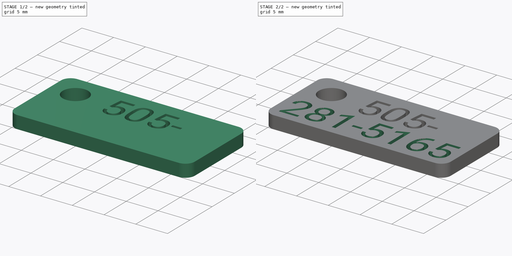
[diagram: build sequence overview — one tinted view per stage of 2, left to right]
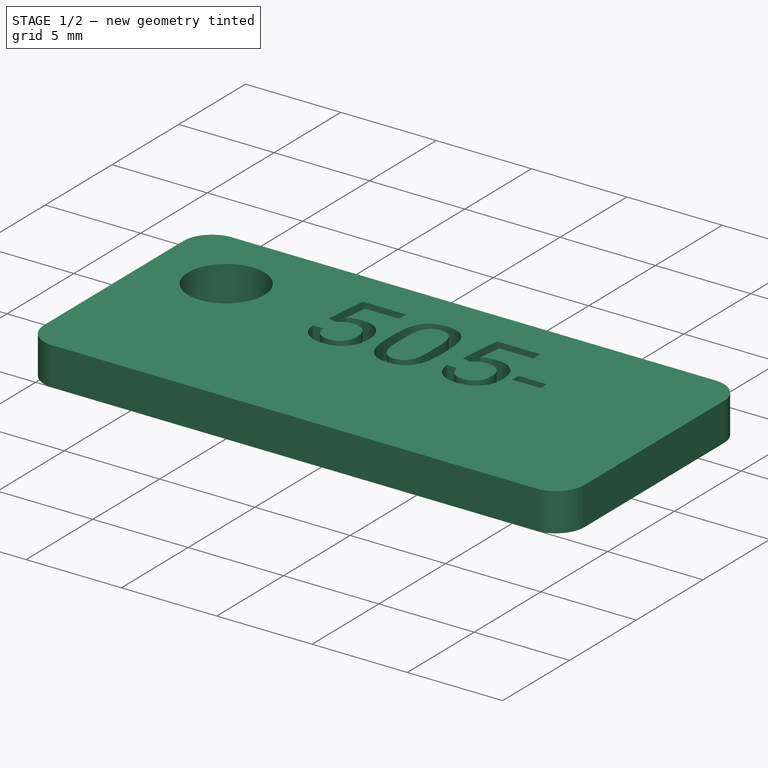
[diagram: stage 1 of 2 — iso view after this stage's code; geometry added in this stage tinted green]
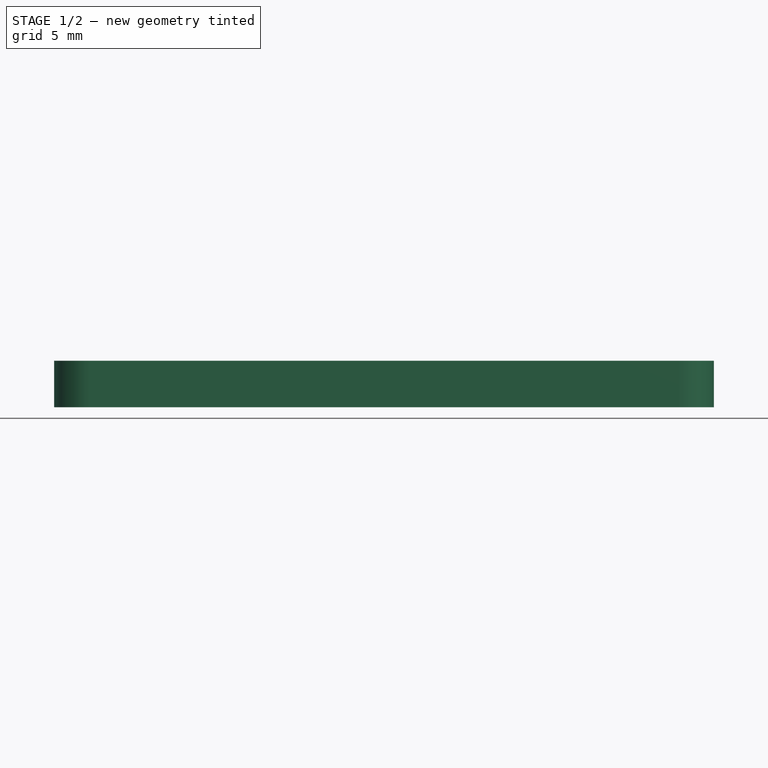
[diagram: stage 1 of 2 — front view after this stage's code; geometry added in this stage tinted green]
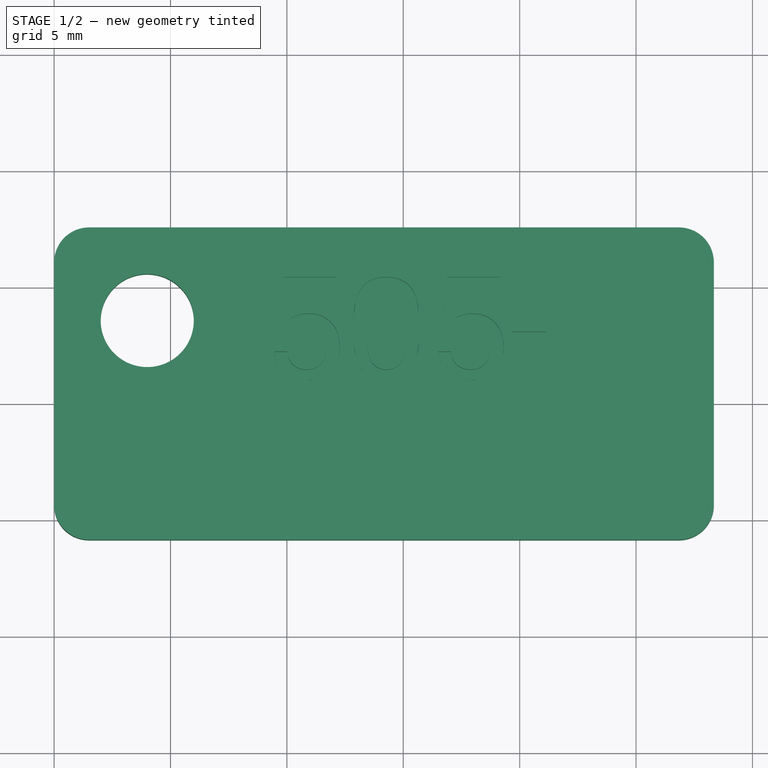
[diagram: stage 1 of 2 — top view after this stage's code; geometry added in this stage tinted green]
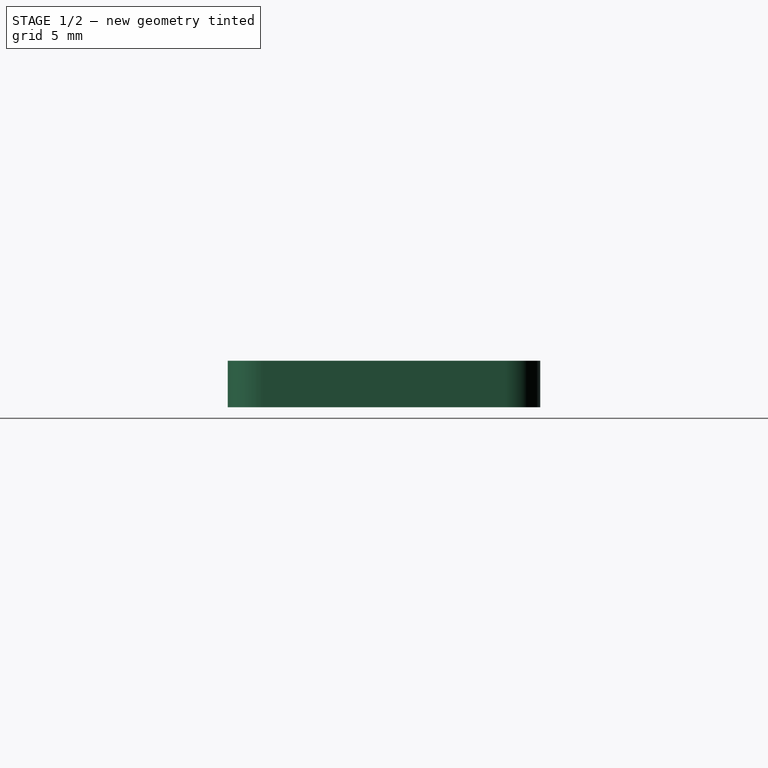
[diagram: stage 1 of 2 — right view after this stage's code; geometry added in this stage tinted green]
FCSTD DOCUMENT  (FreeCAD 0.19R24291 (Git))
Label: cat collar phone tag, 2 lines, smaller, Will
License: All rights reserved
LicenseURL: http://en.wikipedia.org/wiki/All_rights_reserved
objects: Part::Part2DObjectPython×2, PartDesign::Pocket×2, Sketcher::SketchObject×1, PartDesign::Pad×1, PartDesign::Body×1
note: 10 computed .brp shape members not serialized (recipe doc carries the construction recipe); baked Part::Feature solids carry a one-line shape summary decoded from their .brp

FEATURE [Sketcher::SketchObject] Sketch
  FullyConstrained = false
  MapMode = 5
  Support = -> [XY_Plane]
  sketch-geometry (9):
    g0: LineSegment StartX=-13.5 StartY=7.56504 StartZ=0 EndX=11.8429 EndY=7.56504 EndZ=0
    g1: LineSegment StartX=13.3429 StartY=6.06504 StartZ=0 EndX=13.3429 EndY=-4.35562 EndZ=0
    g2: LineSegment StartX=11.8429 StartY=-5.85562 StartZ=0 EndX=-13.5 EndY=-5.85562 EndZ=0
    g3: LineSegment StartX=-15 StartY=-4.35562 StartZ=0 EndX=-15 EndY=6.06504 EndZ=0
    g4: Circle CenterX=-11 CenterY=3.56504 CenterZ=0 NormalX=0 NormalY=0 NormalZ=1 AngleXU=0 Radius=2
    g5: ArcOfCircle CenterX=11.8429 CenterY=6.06504 CenterZ=0 NormalX=0 NormalY=0 NormalZ=1 AngleXU=0 Radius=1.5 StartAngle=0 EndAngle=1.5708
    g6: ArcOfCircle CenterX=11.8429 CenterY=-4.35562 CenterZ=0 NormalX=0 NormalY=0 NormalZ=1 AngleXU=0 Radius=1.5 StartAngle=4.71239 EndAngle=6.28319
    g7: ArcOfCircle CenterX=-13.5 CenterY=-4.35562 CenterZ=0 NormalX=0 NormalY=0 NormalZ=1 AngleXU=0 Radius=1.5 StartAngle=3.14159 EndAngle=4.71239
    g8: ArcOfCircle CenterX=-13.5 CenterY=6.06504 CenterZ=0 NormalX=0 NormalY=0 NormalZ=1 AngleXU=0 Radius=1.5 StartAngle=1.5708 EndAngle=3.14159
  constraints (19):
    c: Horizontal(g0)
    c: Horizontal(g2)
    c: Vertical(g1)
    c: Vertical(g3)
    c: Diameter(g4) = 4
    c: Tangent(g0,g5) = 1.5708
    c: Tangent(g1,g5) = 1.5708
    c: Tangent(g1,g6) = 1.5708
    c: Tangent(g2,g6) = 1.5708
    c: Tangent(g2,g7) = 1.5708
    c: Tangent(g3,g7) = 1.5708
    c: Tangent(g3,g8) = 1.5708
    c: Tangent(g0,g8) = 1.5708
    c: Equal(g5,g6)
    c: Diameter(g8) = 3
    c: Equal(g5,g7)
    c: Equal(g6,g8)
    c: DistanceY(g4,g0) = 4
    c: DistanceX(g3,g4) = 4
FEATURE [PartDesign::Pad] Pad
  Direction = (0,0,1)
  Length = 2
  Length2 = 100
  Profile = -> Sketch
  Type = 0
FEATURE [Part::Part2DObjectPython] ShapeString  label="505"  # Draft 2D object (typed FeaturePython)
  AttachmentOffset = pos=(-6,1,-1) rot=(0,0,1;0rad)
  FontFile = <userpath>/.fonts/Roboto/hinted/Roboto-Regular.ttf
  MakeFace = true
  MapMode = 5
  Placement = pos=(-6,1,1) rot=(0,0,1;0rad)
  Size = 5.5
  String = 505-
  Support = -> [Pad]
  Tracking = 0
FEATURE [Part::Part2DObjectPython] ShapeString001  label="286-2385"  # Draft 2D object (typed FeaturePython)
  AttachmentOffset = pos=(-14,-4.5,-1) rot=(0,0,1;0rad)
  FontFile = <userpath>/.fonts/Roboto/hinted/Roboto-Regular.ttf
  MakeFace = true
  MapMode = 5
  Placement = pos=(-14,-4.5,1) rot=(0,0,1;0rad)
  Size = 5.5
  String = 281-5165
  Support = -> [Pad]
  Tracking = 0
FEATURE [PartDesign::Pocket] Pocket
  BaseFeature = -> Pad
  Length = 1
  Length2 = 100
  Profile = -> ShapeString
  Reversed = true
  Type = 0
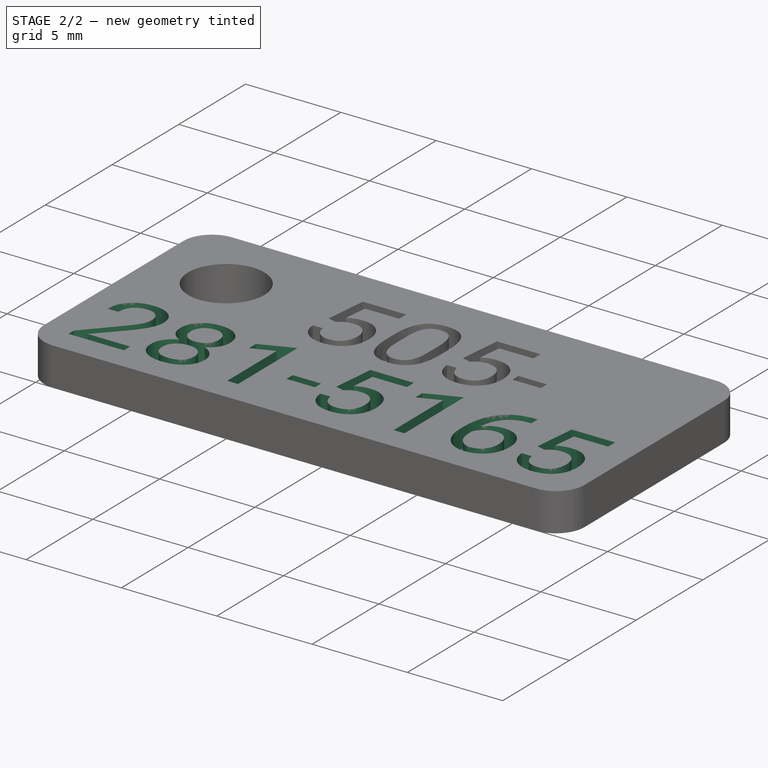
[diagram: stage 2 of 2 — iso view after this stage's code; geometry added in this stage tinted green]
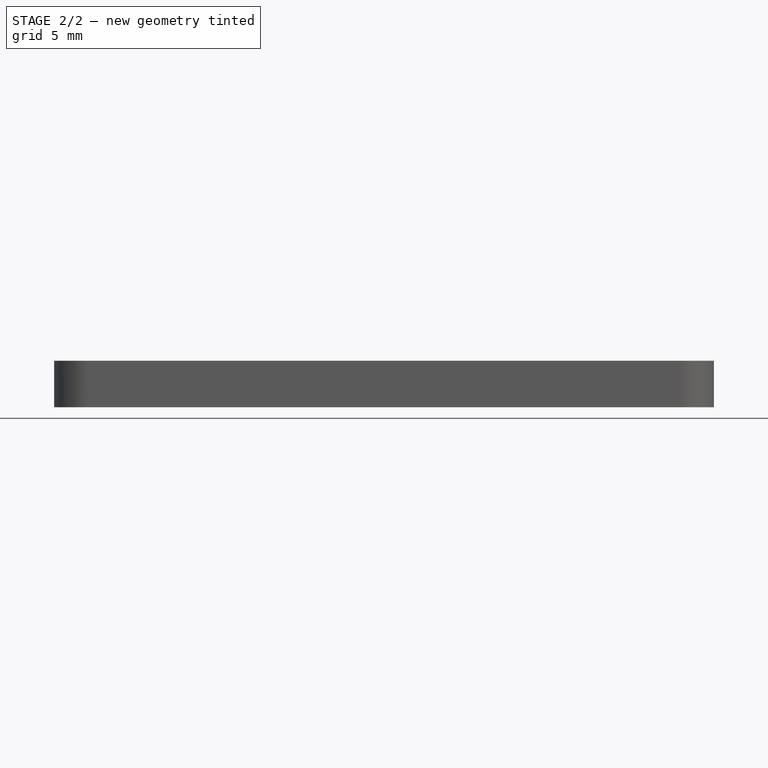
[diagram: stage 2 of 2 — front view after this stage's code; geometry added in this stage tinted green]
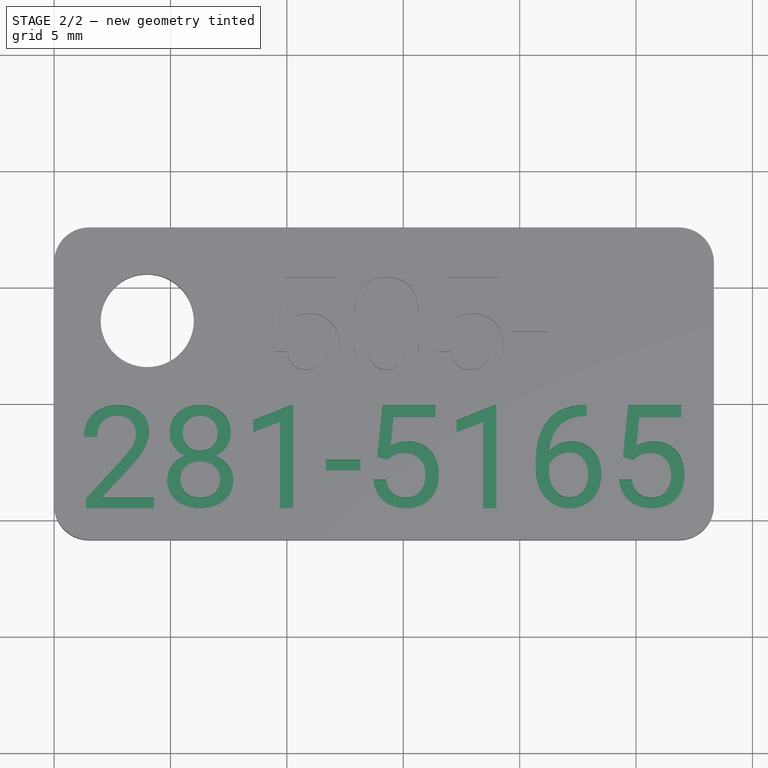
[diagram: stage 2 of 2 — top view after this stage's code; geometry added in this stage tinted green]
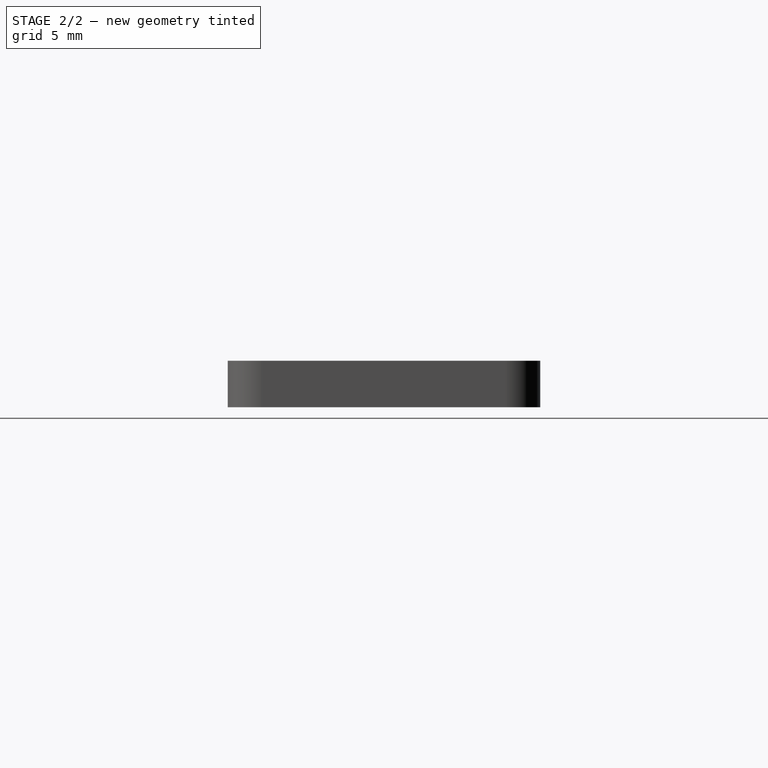
[diagram: stage 2 of 2 — right view after this stage's code; geometry added in this stage tinted green]
FEATURE [PartDesign::Pocket] Pocket001
  BaseFeature = -> Pocket
  Length = 1
  Length2 = 100
  Profile = -> ShapeString001
  Reversed = true
  Type = 0
FEATURE [PartDesign::Body] Body
  Group = -> [Sketch,Pad,ShapeString,ShapeString001,Pocket,Pocket001]
  Origin = -> Origin
  Tip = -> Pocket001
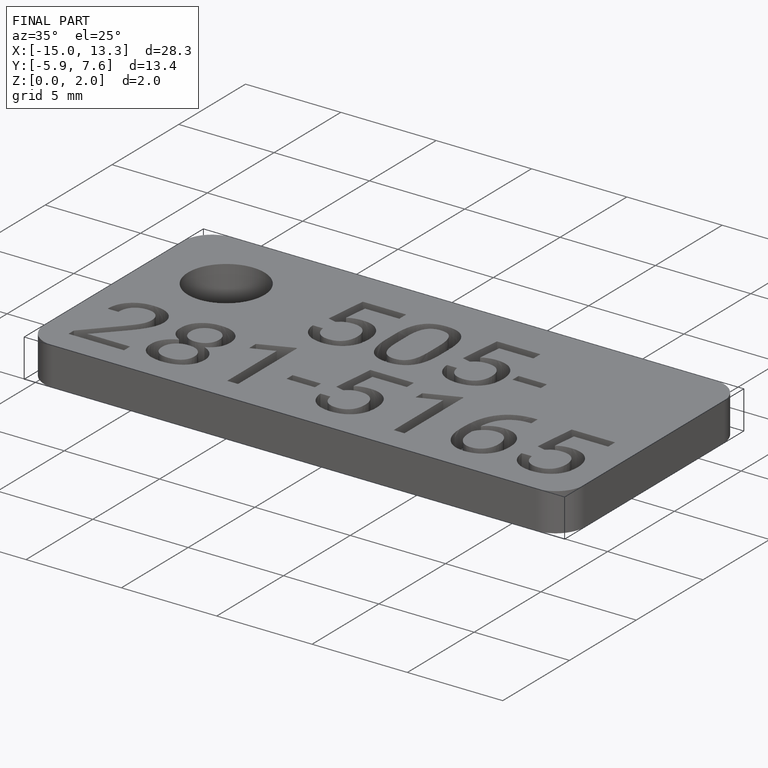
[diagram: finished part — iso view with bounding-box wireframe]
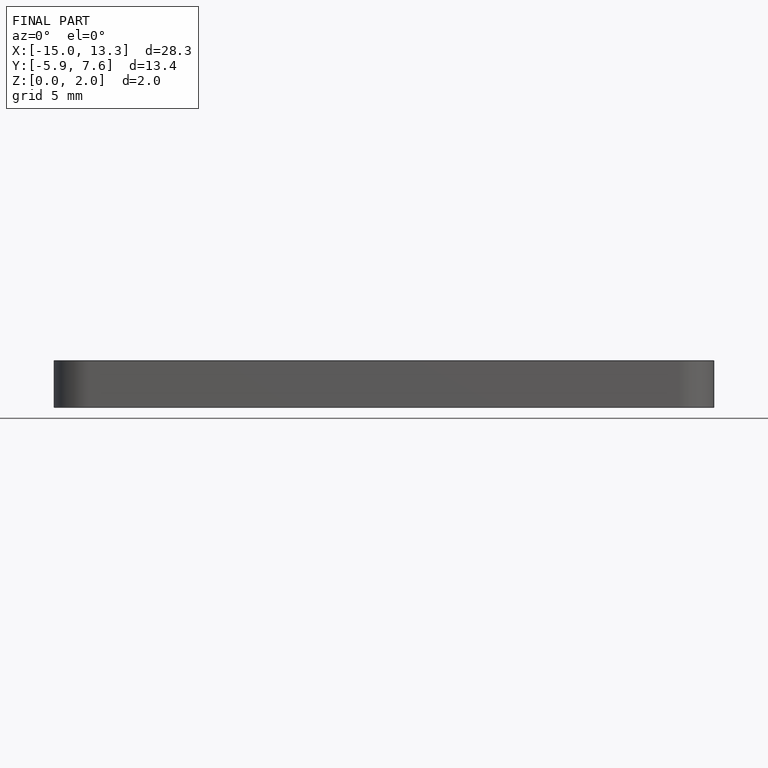
[diagram: finished part — front view with bounding-box wireframe]
